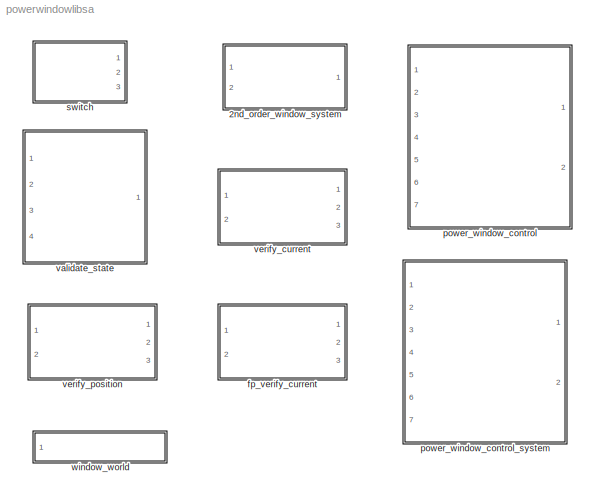
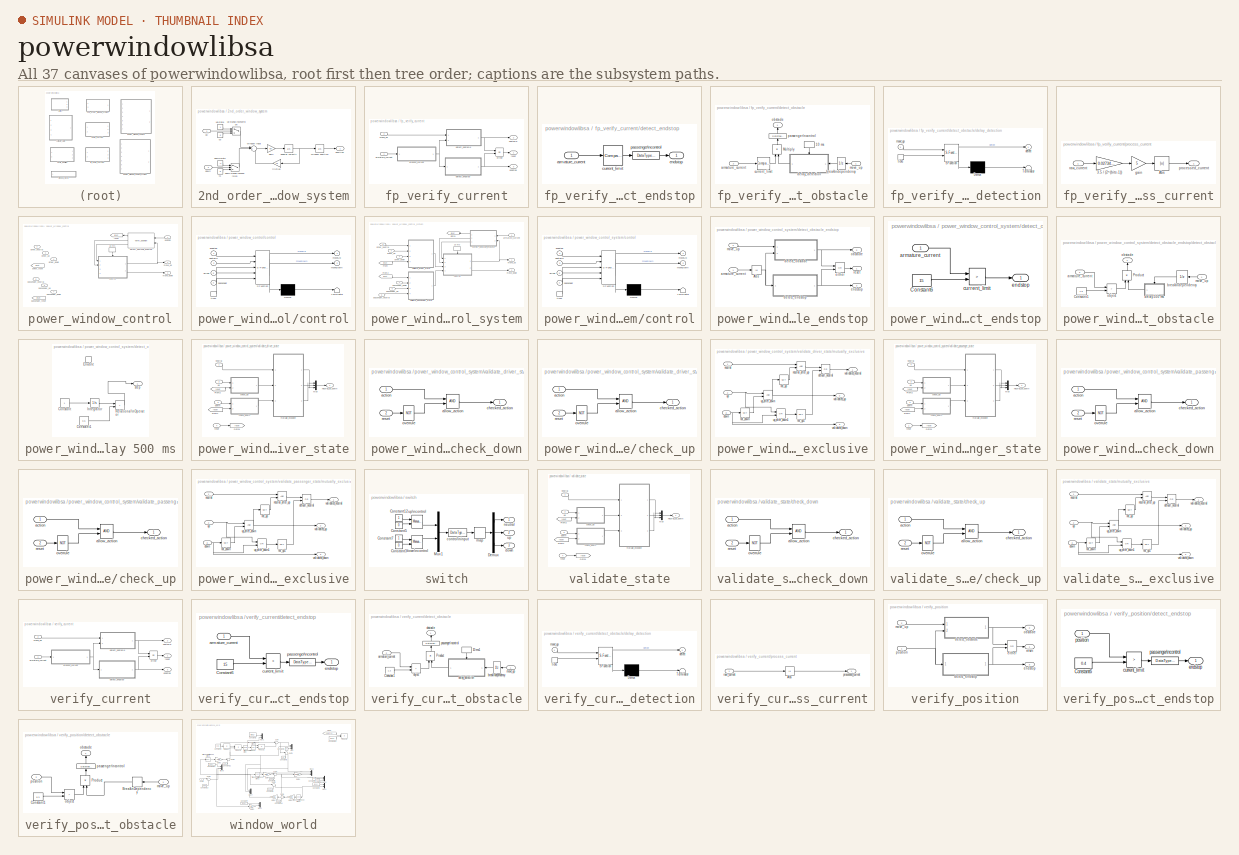
[diagram: thumbnail index - all 37 canvases of the model, root first then tree order]
MODEL powerwindowlibsa
KIND library
CONFIG InitFcn = powericon('psbinitsys',bdroot);
BLOCK [SubSystem] 2nd_order_window_system
  MinAlgLoopOccurrences = off
  Ports = [2, 1]
  PropExecContextAcrossSSBoundary = on
  RTWSystemCode = Auto
  TreatAsAtomicUnit = off
BLOCK [Integrator] 2nd_order_window_system/angular velocity
  Ports = [1, 1]
BLOCK [Constant] 2nd_order_window_system/c0
  Value = 0
BLOCK [Constant] 2nd_order_window_system/c1
  Value = 0
BLOCK [Inport] 2nd_order_window_system/down
  IconDisplay = Port number
  LatchInput = off
  Port = 2
BLOCK [Switch] 2nd_order_window_system/down signal\nconversion
  Threshold = 0.5
BLOCK [Constant] 2nd_order_window_system/down\nrate
  Value = -1
BLOCK [Gain] 2nd_order_window_system/friction
  Gain = 10
BLOCK [Gain] 2nd_order_window_system/gain
  Gain = 50
BLOCK [Outport] 2nd_order_window_system/position
  IconDisplay = Port number
BLOCK [Inport] 2nd_order_window_system/up
  IconDisplay = Port number
  LatchInput = off
  Port = 1
BLOCK [Switch] 2nd_order_window_system/up signal\nconversion
  Threshold = 0.5
BLOCK [Constant] 2nd_order_window_system/up\nrate
BLOCK [Sum] 2nd_order_window_system/window input
  IconShape = round
  Inputs = |++-
  Ports = [3, 1]
BLOCK [Integrator] 2nd_order_window_system/window position
  Ports = [1, 1]
BLOCK [SubSystem] fp_verify_current
  AncestorBlock = powerwindowlibsa/verify_current
  MinAlgLoopOccurrences = off
  Ports = [2, 3]
  PropExecContextAcrossSSBoundary = on
  RTWSystemCode = Auto
  TreatAsAtomicUnit = off
BLOCK [Inport] fp_verify_current/armature_current
  IconDisplay = Port number
  LatchInput = off
  Port = 1
BLOCK [SubSystem] fp_verify_current/detect_endstop
  MinAlgLoopOccurrences = off
  Ports = [1, 1]
  PropExecContextAcrossSSBoundary = on
  RTWSystemCode = Auto
  TreatAsAtomicUnit = off
BLOCK [Inport] fp_verify_current/detect_endstop/armature_current
  IconDisplay = Port number
  LatchInput = off
  Port = 1
BLOCK [Reference] fp_verify_current/detect_endstop/current_limit  REF=fixpt_lib_4/Logic & Comparison/Compare\nTo Constant  (lib defined in mdl_ef9dacb0d1df)
  Ports = [1, 1]
  SourceBlock = fixpt_lib_4/Logic & Comparison/Compare\nTo Constant
  SourceType = Fixed-Point Compare To Constant
  const = 15
  relop = >
BLOCK [Outport] fp_verify_current/detect_endstop/endstop
  IconDisplay = Port number
BLOCK [DataTypeConversion] fp_verify_current/detect_endstop/passenger\ncontrol
  OutDataTypeMode = boolean
BLOCK [SubSystem] fp_verify_current/detect_obstacle
  MinAlgLoopOccurrences = off
  Ports = [2, 1]
  PropExecContextAcrossSSBoundary = on
  RTWSystemCode = Auto
  TreatAsAtomicUnit = off
BLOCK [DiscretePulseGenerator] fp_verify_current/detect_obstacle/10 ms
  Ports = [0, 1]
  SampleTime = 10e-3
BLOCK [Product] fp_verify_current/detect_obstacle/Multiply
  InputSameDT = off
  Inputs = **
  OutDataType = sfix(8)
  OutDataTypeMode = Inherit via internal rule
  OutScaling = 2^-5
  Ports = [2, 1]
  RndMeth = Floor
  SaturateOnIntegerOverflow = off
BLOCK [Inport] fp_verify_current/detect_obstacle/armature_current
  IconDisplay = Port number
  LatchInput = off
  Port = 2
BLOCK [UnitDelay] fp_verify_current/detect_obstacle/break\ndependency
  SampleTime = 0.01
BLOCK [Reference] fp_verify_current/detect_obstacle/current_limit  REF=fixpt_lib_4/Logic & Comparison/Compare\nTo Constant  (lib defined in mdl_ef9dacb0d1df)
  Ports = [1, 1]
  SourceBlock = fixpt_lib_4/Logic & Comparison/Compare\nTo Constant
  SourceType = Fixed-Point Compare To Constant
  const = 1.1
  relop = >
BLOCK [SubSystem] fp_verify_current/detect_obstacle/delay_detection
  MaskDescription = Stateflow diagram
  MaskDisplay = plot(sf('Private','sfblk','xIcon'),sf('Private','sfblk','yIcon'));text(0.5,0,sf('Private', 'sfblk', 'tIcon'),'HorizontalAl','Center','VerticalAl','Bottom');
  MaskIconFrame = off
  MaskIconOpaque = off
  MaskIconRotate = none
  MaskIconUnits = autoscale
  MaskSelfModifiable = on
  MaskType = Stateflow
  MinAlgLoopOccurrences = off
  Ports = [1, 1, 0, 1]
  PropExecContextAcrossSSBoundary = on
  RTWSystemCode = Auto
  TreatAsAtomicUnit = on
BLOCK [Demux] fp_verify_current/detect_obstacle/delay_detection/ Demux 
  Outputs = 1
  Ports = [1, 1]
BLOCK [S-Function] fp_verify_current/detect_obstacle/delay_detection/ SFunction 
  FunctionName = sf_sfun
  PortCounts = [2 2]
  Ports = [2, 2]
  Tag = Stateflow S-Function powerwindowlibsa 4
BLOCK [Terminator] fp_verify_current/detect_obstacle/delay_detection/ Terminator 
BLOCK [Outport] fp_verify_current/detect_obstacle/delay_detection/detect
  IconDisplay = Port number
BLOCK [Inport] fp_verify_current/detect_obstacle/delay_detection/move_up
  IconDisplay = Port number
  LatchInput = off
  Port = 1
BLOCK [TriggerPort] fp_verify_current/detect_obstacle/delay_detection/ticks
  Ports = [0, 1]
  ShowOutputPort = on
  TriggerType = either
BLOCK [Inport] fp_verify_current/detect_obstacle/move_up
  IconDisplay = Port number
  LatchInput = off
  Port = 1
BLOCK [Outport] fp_verify_current/detect_obstacle/obstacle
  IconDisplay = Port number
BLOCK [DataTypeConversion] fp_verify_current/detect_obstacle/passenger\ncontrol
  OutDataTypeMode = boolean
BLOCK [Logic] fp_verify_current/either
  Operator = OR
  Ports = [2, 1]
BLOCK [Outport] fp_verify_current/endstop
  IconDisplay = Port number
  Port = 3
BLOCK [Inport] fp_verify_current/move_up
  IconDisplay = Port number
  LatchInput = off
  Port = 2
BLOCK [Outport] fp_verify_current/obstacle
  IconDisplay = Port number
  Port = 2
BLOCK [SubSystem] fp_verify_current/process_current
  MinAlgLoopOccurrences = off
  Ports = [1, 1]
  PropExecContextAcrossSSBoundary = on
  RTWSystemCode = Auto
  TreatAsAtomicUnit = off
BLOCK [Gain] fp_verify_current/process_current/3.5 // (2^(bits-1))
  Gain = 0.02734375
  OutDataTypeMode = Specify via dialog
  OutScaling = 2^-6
  ParameterDataType = sfix( 8 )
  ParameterDataTypeMode = Inherit via internal rule
  ParameterScaling = 2^-12
  SaturateOnIntegerOverflow = off
BLOCK [Abs] fp_verify_current/process_current/Abs
  SaturateOnIntegerOverflow = off
BLOCK [Gain] fp_verify_current/process_current/gain
  Gain = 5
  OutDataTypeMode = Specify via dialog
  OutScaling = 2^-5
  ParameterDataType = sfix( 8 )
  ParameterDataTypeMode = Inherit via internal rule
  ParameterScaling = 2^-4
  SaturateOnIntegerOverflow = off
BLOCK [Outport] fp_verify_current/process_current/processed_current
  IconDisplay = Port number
BLOCK [Inport] fp_verify_current/process_current/raw_current
  IconDisplay = Port number
  LatchInput = off
  Port = 1
BLOCK [Outport] fp_verify_current/reset
  IconDisplay = Port number
BLOCK [SubSystem] power_window_control
  MinAlgLoopOccurrences = off
  Ports = [7, 2]
  PropExecContextAcrossSSBoundary = on
  RTWSystemCode = Auto
  TreatAsAtomicUnit = off
BLOCK [DiscretePulseGenerator] power_window_control/10 ms
  Ports = [0, 1]
  SampleTime = 10e-3
BLOCK [SubSystem] power_window_control/control
  MaskDescription = Stateflow diagram
  MaskDisplay = plot(sf('Private','sfblk','xIcon'),sf('Private','sfblk','yIcon'));text(0.5,0,sf('Private', 'sfblk', 'tIcon'),'HorizontalAl','Center','VerticalAl','Bottom');
  MaskIconFrame = off
  MaskIconOpaque = off
  MaskIconRotate = none
  MaskIconUnits = autoscale
  MaskSelfModifiable = on
  MaskType = Stateflow
  MinAlgLoopOccurrences = off
  Ports = [4, 2, 0, 1]
  PropExecContextAcrossSSBoundary = on
  RTWSystemCode = Auto
  TreatAsAtomicUnit = on
BLOCK [Demux] power_window_control/control/ Demux 
  Outputs = 1
  Ports = [1, 1]
BLOCK [S-Function] power_window_control/control/ SFunction 
  FunctionName = sf_sfun
  PortCounts = [5 3]
  Ports = [5, 3]
  Tag = Stateflow S-Function powerwindowlibsa 2
BLOCK [Terminator] power_window_control/control/ Terminator 
BLOCK [Inport] power_window_control/control/driver
  IconDisplay = Port number
  LatchInput = off
  Port = 3
BLOCK [Inport] power_window_control/control/endstop
  IconDisplay = Port number
  LatchInput = off
  Port = 1
BLOCK [Outport] power_window_control/control/moveDown
  IconDisplay = Port number
  Port = 2
BLOCK [Outport] power_window_control/control/moveUp
  IconDisplay = Port number
BLOCK [Inport] power_window_control/control/obstacle
  IconDisplay = Port number
  LatchInput = off
  Port = 2
BLOCK [Inport] power_window_control/control/passenger
  IconDisplay = Port number
  LatchInput = off
  Port = 4
BLOCK [TriggerPort] power_window_control/control/ticks
  Ports = [0, 1]
  ShowOutputPort = on
  TriggerType = either
BLOCK [Reference] power_window_control/detect_obstacle_endstop  REF=powerwindowlibsa/verify_position  (lib defined in mdl_0e1f81347832)
  AncestorBlock = powerwindowlibsa/detect_obstacle_endstop
  DataTypeOverride = UseLocalSettings
  MinMaxOverflowLogging = UseLocalSettings
  Permissions = ReadWrite
  Ports = [2, 3]
  RTWFcnNameOpts = Auto
  RTWFileNameOpts = Auto
  RTWSystemCode = Auto
  ShowPortLabels = on
  SimViewingDevice = off
  SourceBlock = powerwindowlibsa/verify_position
  SourceType = SubSystem
  TreatAsAtomicUnit = off
BLOCK [Inport] power_window_control/driver_down
  IconDisplay = Port number
  LatchInput = off
  Port = 4
BLOCK [Inport] power_window_control/driver_neutral
  IconDisplay = Port number
  LatchInput = off
  Port = 2
BLOCK [From] power_window_control/driver_reset
  CloseFcn = tagdialog Close
  DialogController = Simulink.DDGSource
  GotoTag = reset
BLOCK [Inport] power_window_control/driver_up
  IconDisplay = Port number
  LatchInput = off
  Port = 3
BLOCK [Outport] power_window_control/move_down
  IconDisplay = Port number
  Port = 2
BLOCK [Outport] power_window_control/move_up
  IconDisplay = Port number
BLOCK [Inport] power_window_control/passenger_down
  IconDisplay = Port number
  LatchInput = off
  Port = 7
BLOCK [Inport] power_window_control/passenger_neutral
  IconDisplay = Port number
  LatchInput = off
  Port = 5
BLOCK [From] power_window_control/passenger_reset
  CloseFcn = tagdialog Close
  DialogController = Simulink.DDGSource
  GotoTag = reset
BLOCK [Inport] power_window_control/passenger_up
  IconDisplay = Port number
  LatchInput = off
  Port = 6
BLOCK [Inport] power_window_control/position
  IconDisplay = Port number
  LatchInput = off
  Port = 1
BLOCK [Goto] power_window_control/reset
  DialogController = Simulink.DDGSource
  GotoTag = reset
  TagVisibility = local
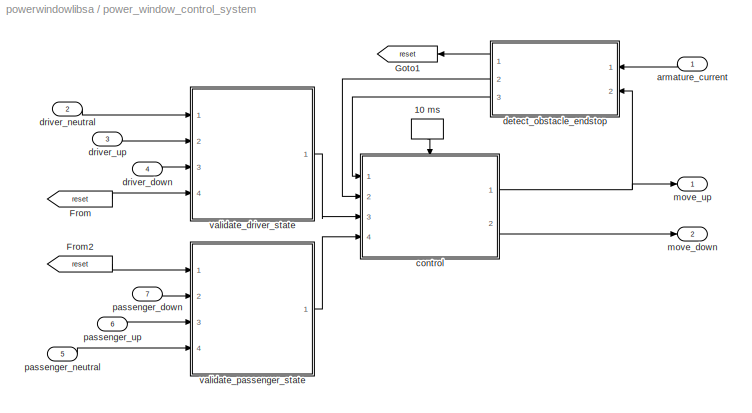
BLOCK [SubSystem] power_window_control_system
  MinAlgLoopOccurrences = off
  Ports = [7, 2]
  PropExecContextAcrossSSBoundary = on
  RTWSystemCode = Auto
  TreatAsAtomicUnit = off
BLOCK [DiscretePulseGenerator] power_window_control_system/10 ms
  Period = 1e-2
  Ports = [0, 1]
  PulseType = Time based
  SampleTime = 1e-3
BLOCK [From] power_window_control_system/From
  CloseFcn = tagdialog Close
  DialogController = Simulink.DDGSource
  GotoTag = reset
BLOCK [From] power_window_control_system/From2
  CloseFcn = tagdialog Close
  DialogController = Simulink.DDGSource
  GotoTag = reset
BLOCK [Goto] power_window_control_system/Goto1
  DialogController = Simulink.DDGSource
  GotoTag = reset
  TagVisibility = local
BLOCK [Inport] power_window_control_system/armature_current
  IconDisplay = Port number
  LatchInput = off
  Port = 1
BLOCK [SubSystem] power_window_control_system/control
  MaskDescription = Stateflow diagram
  MaskDisplay = plot(sf('Private','sfblk','xIcon'),sf('Private','sfblk','yIcon'));text(0.5,0,sf('Private', 'sfblk', 'tIcon'),'HorizontalAl','Center','VerticalAl','Bottom');
  MaskIconFrame = off
  MaskIconOpaque = off
  MaskIconRotate = none
  MaskIconUnits = autoscale
  MaskSelfModifiable = on
  MaskType = Stateflow
  MinAlgLoopOccurrences = off
  Ports = [4, 2, 0, 1]
  PropExecContextAcrossSSBoundary = on
  RTWSystemCode = Auto
  TreatAsAtomicUnit = on
BLOCK [Demux] power_window_control_system/control/ Demux 
  Outputs = 1
  Ports = [1, 1]
BLOCK [S-Function] power_window_control_system/control/ SFunction 
  FunctionName = sf_sfun
  PortCounts = [5 3]
  Ports = [5, 3]
  Tag = Stateflow S-Function powerwindowlibsa 1
BLOCK [Terminator] power_window_control_system/control/ Terminator 
BLOCK [Inport] power_window_control_system/control/driver
  IconDisplay = Port number
  LatchInput = off
  Port = 3
BLOCK [Inport] power_window_control_system/control/endstop
  IconDisplay = Port number
  LatchInput = off
  Port = 1
BLOCK [Outport] power_window_control_system/control/moveDown
  IconDisplay = Port number
  Port = 2
BLOCK [Outport] power_window_control_system/control/moveUp
  IconDisplay = Port number
BLOCK [Inport] power_window_control_system/control/obstacle
  IconDisplay = Port number
  LatchInput = off
  Port = 2
BLOCK [Inport] power_window_control_system/control/passenger
  IconDisplay = Port number
  LatchInput = off
  Port = 4
BLOCK [TriggerPort] power_window_control_system/control/ticks
  Ports = [0, 1]
  ShowOutputPort = on
BLOCK [SubSystem] power_window_control_system/detect_obstacle_endstop
  MinAlgLoopOccurrences = off
  Ports = [2, 3]
  PropExecContextAcrossSSBoundary = on
  RTWSystemCode = Auto
  TreatAsAtomicUnit = off
BLOCK [Abs] power_window_control_system/detect_obstacle_endstop/Abs
BLOCK [Inport] power_window_control_system/detect_obstacle_endstop/armature_current
  IconDisplay = Port number
  LatchInput = off
  Port = 1
BLOCK [SubSystem] power_window_control_system/detect_obstacle_endstop/detect_endstop
  MinAlgLoopOccurrences = off
  Ports = [1, 1]
  PropExecContextAcrossSSBoundary = on
  RTWSystemCode = Auto
  TreatAsAtomicUnit = off
BLOCK [Constant] power_window_control_system/detect_obstacle_endstop/detect_endstop/Constant6
  Value = 15
BLOCK [Inport] power_window_control_system/detect_obstacle_endstop/detect_endstop/armature_current
  IconDisplay = Port number
  LatchInput = off
  Port = 1
BLOCK [RelationalOperator] power_window_control_system/detect_obstacle_endstop/detect_endstop/current_limit
  Operator = >
BLOCK [Outport] power_window_control_system/detect_obstacle_endstop/detect_endstop/endstop
  IconDisplay = Port number
BLOCK [SubSystem] power_window_control_system/detect_obstacle_endstop/detect_obstacle
  MinAlgLoopOccurrences = off
  Ports = [2, 1]
  PropExecContextAcrossSSBoundary = on
  RTWSystemCode = Auto
  TreatAsAtomicUnit = off
BLOCK [Constant] power_window_control_system/detect_obstacle_endstop/detect_obstacle/Constant1
  Value = 1.6
BLOCK [Product] power_window_control_system/detect_obstacle_endstop/detect_obstacle/Product
  Ports = [2, 1]
  RndMeth = Floor
BLOCK [Inport] power_window_control_system/detect_obstacle_endstop/detect_obstacle/armature_current
  IconDisplay = Port number
  LatchInput = off
  Port = 2
BLOCK [UnitDelay] power_window_control_system/detect_obstacle_endstop/detect_obstacle/break\ndependency
  SampleTime = 0.01
BLOCK [SubSystem] power_window_control_system/detect_obstacle_endstop/detect_obstacle/delay 500 ms
  MinAlgLoopOccurrences = off
  Ports = [0, 1, 1]
  PropExecContextAcrossSSBoundary = on
  RTWSystemCode = Auto
  TreatAsAtomicUnit = on
BLOCK [Constant] power_window_control_system/detect_obstacle_endstop/detect_obstacle/delay 500 ms/Constant
BLOCK [Constant] power_window_control_system/detect_obstacle_endstop/detect_obstacle/delay 500 ms/Constant1
  Value = 0.5
BLOCK [EnablePort] power_window_control_system/detect_obstacle_endstop/detect_obstacle/delay 500 ms/Enable
  Ports = []
  StatesWhenEnabling = reset
BLOCK [Integrator] power_window_control_system/detect_obstacle_endstop/detect_obstacle/delay 500 ms/Integrator
  Ports = [1, 1]
BLOCK [RelationalOperator] power_window_control_system/detect_obstacle_endstop/detect_obstacle/delay 500 ms/Relational\nOperator
  Operator = >
BLOCK [Outport] power_window_control_system/detect_obstacle_endstop/detect_obstacle/delay 500 ms/step
  IconDisplay = Port number
  InitialOutput = 0
  OutputWhenDisabled = reset
BLOCK [Inport] power_window_control_system/detect_obstacle_endstop/detect_obstacle/move_up
  IconDisplay = Port number
  LatchInput = off
  Port = 1
BLOCK [RelationalOperator] power_window_control_system/detect_obstacle_endstop/detect_obstacle/object
  Operator = >
BLOCK [Outport] power_window_control_system/detect_obstacle_endstop/detect_obstacle/obstacle
  IconDisplay = Port number
BLOCK [Logic] power_window_control_system/detect_obstacle_endstop/either
  Operator = OR
  Ports = [2, 1]
BLOCK [Outport] power_window_control_system/detect_obstacle_endstop/endstop
  IconDisplay = Port number
  Port = 3
BLOCK [Inport] power_window_control_system/detect_obstacle_endstop/move_up
  IconDisplay = Port number
  LatchInput = off
  Port = 2
BLOCK [Outport] power_window_control_system/detect_obstacle_endstop/obstacle
  IconDisplay = Port number
  Port = 2
BLOCK [Outport] power_window_control_system/detect_obstacle_endstop/reset
  IconDisplay = Port number
BLOCK [Inport] power_window_control_system/driver_down
  IconDisplay = Port number
  LatchInput = off
  Port = 4
BLOCK [Inport] power_window_control_system/driver_neutral
  IconDisplay = Port number
  LatchInput = off
  Port = 2
BLOCK [Inport] power_window_control_system/driver_up
  IconDisplay = Port number
  LatchInput = off
  Port = 3
BLOCK [Outport] power_window_control_system/move_down
  IconDisplay = Port number
  Port = 2
BLOCK [Outport] power_window_control_system/move_up
  IconDisplay = Port number
BLOCK [Inport] power_window_control_system/passenger_down
  IconDisplay = Port number
  LatchInput = off
  Port = 7
BLOCK [Inport] power_window_control_system/passenger_neutral
  IconDisplay = Port number
  LatchInput = off
  Port = 5
BLOCK [Inport] power_window_control_system/passenger_up
  IconDisplay = Port number
  LatchInput = off
  Port = 6
BLOCK [SubSystem] power_window_control_system/validate_driver_state
  MinAlgLoopOccurrences = off
  Ports = [4, 1]
  PropExecContextAcrossSSBoundary = on
  RTWSystemCode = Auto
  TreatAsAtomicUnit = off
BLOCK [From] power_window_control_system/validate_driver_state/From1
  CloseFcn = tagdialog Close
  DialogController = Simulink.DDGSource
  GotoTag = reset
BLOCK [From] power_window_control_system/validate_driver_state/From2
  CloseFcn = tagdialog Close
  DialogController = Simulink.DDGSource
  GotoTag = reset
BLOCK [Goto] power_window_control_system/validate_driver_state/Goto1
  DialogController = Simulink.DDGSource
  GotoTag = reset
  TagVisibility = local
BLOCK [Mux] power_window_control_system/validate_driver_state/Mux
  DisplayOption = bar
  Inputs = 3
  Ports = [3, 1]
BLOCK [SubSystem] power_window_control_system/validate_driver_state/check_down
  MinAlgLoopOccurrences = off
  Ports = [2, 1]
  PropExecContextAcrossSSBoundary = on
  RTWSystemCode = Auto
  TreatAsAtomicUnit = off
BLOCK [Inport] power_window_control_system/validate_driver_state/check_down/action
  IconDisplay = Port number
  LatchInput = off
  Port = 1
BLOCK [Logic] power_window_control_system/validate_driver_state/check_down/allow_action
  Ports = [2, 1]
BLOCK [Outport] power_window_control_system/validate_driver_state/check_down/checked_action
  IconDisplay = Port number
BLOCK [Logic] power_window_control_system/validate_driver_state/check_down/overrule
  Operator = NOT
  Ports = [1, 1]
BLOCK [Inport] power_window_control_system/validate_driver_state/check_down/reset
  IconDisplay = Port number
  LatchInput = off
  Port = 2
BLOCK [SubSystem] power_window_control_system/validate_driver_state/check_up
  MinAlgLoopOccurrences = off
  Ports = [2, 1]
  PropExecContextAcrossSSBoundary = on
  RTWSystemCode = Auto
  TreatAsAtomicUnit = off
BLOCK [Inport] power_window_control_system/validate_driver_state/check_up/action
  IconDisplay = Port number
  LatchInput = off
  Port = 1
BLOCK [Logic] power_window_control_system/validate_driver_state/check_up/allow_action
  Ports = [2, 1]
BLOCK [Outport] power_window_control_system/validate_driver_state/check_up/checked_action
  IconDisplay = Port number
BLOCK [Logic] power_window_control_system/validate_driver_state/check_up/overrule
  Operator = NOT
  Ports = [1, 1]
BLOCK [Inport] power_window_control_system/validate_driver_state/check_up/reset
  IconDisplay = Port number
  LatchInput = off
  Port = 2
BLOCK [Inport] power_window_control_system/validate_driver_state/down
  IconDisplay = Port number
  LatchInput = off
  Port = 3
BLOCK [SubSystem] power_window_control_system/validate_driver_state/mutually_exclusive
  MinAlgLoopOccurrences = off
  Ports = [3, 3]
  PropExecContextAcrossSSBoundary = on
  RTWSystemCode = Auto
  TreatAsAtomicUnit = off
BLOCK [Logic] power_window_control_system/validate_driver_state/mutually_exclusive/default_neutral
  Operator = OR
  Ports = [2, 1]
BLOCK [Inport] power_window_control_system/validate_driver_state/mutually_exclusive/down
  IconDisplay = Port number
  LatchInput = off
  Port = 3
BLOCK [Inport] power_window_control_system/validate_driver_state/mutually_exclusive/neutral
  IconDisplay = Port number
  LatchInput = off
  Port = 1
BLOCK [Logic] power_window_control_system/validate_driver_state/mutually_exclusive/neutral_after_up
  Ports = [2, 1]
BLOCK [Logic] power_window_control_system/validate_driver_state/mutually_exclusive/not_down
  Operator = NOT
  Ports = [1, 1]
BLOCK [Logic] power_window_control_system/validate_driver_state/mutually_exclusive/not_up
  Operator = NOT
  Ports = [1, 1]
BLOCK [Logic] power_window_control_system/validate_driver_state/mutually_exclusive/not_up1
  Operator = NOT
  Ports = [1, 1]
BLOCK [Inport] power_window_control_system/validate_driver_state/mutually_exclusive/up
  IconDisplay = Port number
  LatchInput = off
  Port = 2
BLOCK [Logic] power_window_control_system/validate_driver_state/mutually_exclusive/up_after_down
  Ports = [2, 1]
BLOCK [Logic] power_window_control_system/validate_driver_state/mutually_exclusive/up_after_down1
  Operator = OR
  Ports = [2, 1]
BLOCK [Outport] power_window_control_system/validate_driver_state/mutually_exclusive/validated_down
  IconDisplay = Port number
  Port = 3
BLOCK [Outport] power_window_control_system/validate_driver_state/mutually_exclusive/validated_neutral
  IconDisplay = Port number
BLOCK [Outport] power_window_control_system/validate_driver_state/mutually_exclusive/validated_up
  IconDisplay = Port number
  Port = 2
BLOCK [Inport] power_window_control_system/validate_driver_state/neutral
  IconDisplay = Port number
  LatchInput = off
  Port = 1
BLOCK [Outport] power_window_control_system/validate_driver_state/neutral_up_down
  IconDisplay = Port number
BLOCK [Inport] power_window_control_system/validate_driver_state/reset
  IconDisplay = Port number
  LatchInput = off
  Port = 4
BLOCK [Inport] power_window_control_system/validate_driver_state/up
  IconDisplay = Port number
  LatchInput = off
  Port = 2
BLOCK [SubSystem] power_window_control_system/validate_passenger_state
  MinAlgLoopOccurrences = off
  Ports = [4, 1]
  PropExecContextAcrossSSBoundary = on
  RTWSystemCode = Auto
  TreatAsAtomicUnit = off
BLOCK [From] power_window_control_system/validate_passenger_state/From1
  CloseFcn = tagdialog Close
  DialogController = Simulink.DDGSource
  GotoTag = reset
BLOCK [From] power_window_control_system/validate_passenger_state/From2
  CloseFcn = tagdialog Close
  DialogController = Simulink.DDGSource
  GotoTag = reset
BLOCK [Goto] power_window_control_system/validate_passenger_state/Goto1
  DialogController = Simulink.DDGSource
  GotoTag = reset
  TagVisibility = local
BLOCK [Mux] power_window_control_system/validate_passenger_state/Mux
  DisplayOption = bar
  Inputs = 3
  Ports = [3, 1]
BLOCK [SubSystem] power_window_control_system/validate_passenger_state/check_down
  MinAlgLoopOccurrences = off
  Ports = [2, 1]
  PropExecContextAcrossSSBoundary = on
  RTWSystemCode = Auto
  TreatAsAtomicUnit = off
BLOCK [Inport] power_window_control_system/validate_passenger_state/check_down/action
  IconDisplay = Port number
  LatchInput = off
  Port = 1
BLOCK [Logic] power_window_control_system/validate_passenger_state/check_down/allow_action
  Ports = [2, 1]
BLOCK [Outport] power_window_control_system/validate_passenger_state/check_down/checked_action
  IconDisplay = Port number
BLOCK [Logic] power_window_control_system/validate_passenger_state/check_down/overrule
  Operator = NOT
  Ports = [1, 1]
BLOCK [Inport] power_window_control_system/validate_passenger_state/check_down/reset
  IconDisplay = Port number
  LatchInput = off
  Port = 2
BLOCK [SubSystem] power_window_control_system/validate_passenger_state/check_up
  MinAlgLoopOccurrences = off
  Ports = [2, 1]
  PropExecContextAcrossSSBoundary = on
  RTWSystemCode = Auto
  TreatAsAtomicUnit = off
BLOCK [Inport] power_window_control_system/validate_passenger_state/check_up/action
  IconDisplay = Port number
  LatchInput = off
  Port = 1
BLOCK [Logic] power_window_control_system/validate_passenger_state/check_up/allow_action
  Ports = [2, 1]
BLOCK [Outport] power_window_control_system/validate_passenger_state/check_up/checked_action
  IconDisplay = Port number
BLOCK [Logic] power_window_control_system/validate_passenger_state/check_up/overrule
  Operator = NOT
  Ports = [1, 1]
BLOCK [Inport] power_window_control_system/validate_passenger_state/check_up/reset
  IconDisplay = Port number
  LatchInput = off
  Port = 2
BLOCK [Inport] power_window_control_system/validate_passenger_state/down
  IconDisplay = Port number
  LatchInput = off
  Port = 2
BLOCK [SubSystem] power_window_control_system/validate_passenger_state/mutually_exclusive
  MinAlgLoopOccurrences = off
  Ports = [3, 3]
  PropExecContextAcrossSSBoundary = on
  RTWSystemCode = Auto
  TreatAsAtomicUnit = off
BLOCK [Logic] power_window_control_system/validate_passenger_state/mutually_exclusive/default_neutral
  Operator = OR
  Ports = [2, 1]
BLOCK [Inport] power_window_control_system/validate_passenger_state/mutually_exclusive/down
  IconDisplay = Port number
  LatchInput = off
  Port = 3
BLOCK [Inport] power_window_control_system/validate_passenger_state/mutually_exclusive/neutral
  IconDisplay = Port number
  LatchInput = off
  Port = 1
BLOCK [Logic] power_window_control_system/validate_passenger_state/mutually_exclusive/neutral_after_up
  Ports = [2, 1]
BLOCK [Logic] power_window_control_system/validate_passenger_state/mutually_exclusive/not_down
  Operator = NOT
  Ports = [1, 1]
BLOCK [Logic] power_window_control_system/validate_passenger_state/mutually_exclusive/not_up
  Operator = NOT
  Ports = [1, 1]
BLOCK [Logic] power_window_control_system/validate_passenger_state/mutually_exclusive/not_up1
  Operator = NOT
  Ports = [1, 1]
BLOCK [Inport] power_window_control_system/validate_passenger_state/mutually_exclusive/up
  IconDisplay = Port number
  LatchInput = off
  Port = 2
BLOCK [Logic] power_window_control_system/validate_passenger_state/mutually_exclusive/up_after_down
  Ports = [2, 1]
BLOCK [Logic] power_window_control_system/validate_passenger_state/mutually_exclusive/up_after_down1
  Operator = OR
  Ports = [2, 1]
BLOCK [Outport] power_window_control_system/validate_passenger_state/mutually_exclusive/validated_down
  IconDisplay = Port number
  Port = 3
BLOCK [Outport] power_window_control_system/validate_passenger_state/mutually_exclusive/validated_neutral
  IconDisplay = Port number
BLOCK [Outport] power_window_control_system/validate_passenger_state/mutually_exclusive/validated_up
  IconDisplay = Port number
  Port = 2
BLOCK [Inport] power_window_control_system/validate_passenger_state/neutral
  IconDisplay = Port number
  LatchInput = off
  Port = 4
BLOCK [Outport] power_window_control_system/validate_passenger_state/neutral_up_down
  IconDisplay = Port number
BLOCK [Inport] power_window_control_system/validate_passenger_state/reset
  IconDisplay = Port number
  LatchInput = off
  Port = 1
BLOCK [Inport] power_window_control_system/validate_passenger_state/up
  IconDisplay = Port number
  LatchInput = off
  Port = 3
BLOCK [SubSystem] switch
  MinAlgLoopOccurrences = off
  Ports = [0, 3]
  PropExecContextAcrossSSBoundary = on
  RTWSystemCode = Auto
  TreatAsAtomicUnit = off
BLOCK [Constant] switch/Constant12
BLOCK [Constant] switch/Constant3
  Value = 0
BLOCK [Constant] switch/Constant5
  Value = 0
BLOCK [Constant] switch/Constant7
BLOCK [Demux] switch/Demux
  Outputs = 3
  Ports = [1, 3]
BLOCK [Mux] switch/Mux1
  DisplayOption = bar
  Inputs = 2
  Ports = [2, 1]
BLOCK [DataTypeConversion] switch/control\ninput
  OutDataTypeMode = boolean
BLOCK [Outport] switch/down
  IconDisplay = Port number
  Port = 3
BLOCK [Reference] switch/down\ncontrol  REF=simulink/Signal\nRouting/Manual Switch
  Ports = [2, 1]
  SourceBlock = simulink/Signal\nRouting/Manual Switch
  SourceType = Manual Switch
  action = 0
  sw = 0
BLOCK [CombinatorialLogic] switch/map
  TruthTable = [1 0 0;0 0 1;0 1 0;1 0 0]
BLOCK [Outport] switch/neutral
  IconDisplay = Port number
BLOCK [Outport] switch/up
  IconDisplay = Port number
  Port = 2
BLOCK [Reference] switch/up\ncontrol  REF=simulink/Signal\nRouting/Manual Switch
  Ports = [2, 1]
  SourceBlock = simulink/Signal\nRouting/Manual Switch
  SourceType = Manual Switch
  action = 0
  sw = 0
BLOCK [SubSystem] validate_state
  MinAlgLoopOccurrences = off
  Ports = [4, 1]
  PropExecContextAcrossSSBoundary = on
  RTWSystemCode = Auto
  TreatAsAtomicUnit = off
BLOCK [From] validate_state/From1
  CloseFcn = tagdialog Close
  DialogController = Simulink.DDGSource
  GotoTag = reset
BLOCK [From] validate_state/From2
  CloseFcn = tagdialog Close
  DialogController = Simulink.DDGSource
  GotoTag = reset
BLOCK [Goto] validate_state/Goto1
  DialogController = Simulink.DDGSource
  GotoTag = reset
  TagVisibility = local
BLOCK [Mux] validate_state/Mux
  DisplayOption = bar
  Inputs = 3
  Ports = [3, 1]
BLOCK [SubSystem] validate_state/check_down
  MinAlgLoopOccurrences = off
  Ports = [2, 1]
  PropExecContextAcrossSSBoundary = on
  RTWSystemCode = Auto
  TreatAsAtomicUnit = off
BLOCK [Inport] validate_state/check_down/action
  IconDisplay = Port number
  LatchInput = off
  Port = 1
BLOCK [Logic] validate_state/check_down/allow_action
  Ports = [2, 1]
BLOCK [Outport] validate_state/check_down/checked_action
  IconDisplay = Port number
BLOCK [Logic] validate_state/check_down/overrule
  Operator = NOT
  Ports = [1, 1]
BLOCK [Inport] validate_state/check_down/reset
  IconDisplay = Port number
  LatchInput = off
  Port = 2
BLOCK [SubSystem] validate_state/check_up
  MinAlgLoopOccurrences = off
  Ports = [2, 1]
  PropExecContextAcrossSSBoundary = on
  RTWSystemCode = Auto
  TreatAsAtomicUnit = off
BLOCK [Inport] validate_state/check_up/action
  IconDisplay = Port number
  LatchInput = off
  Port = 1
BLOCK [Logic] validate_state/check_up/allow_action
  Ports = [2, 1]
BLOCK [Outport] validate_state/check_up/checked_action
  IconDisplay = Port number
BLOCK [Logic] validate_state/check_up/overrule
  Operator = NOT
  Ports = [1, 1]
BLOCK [Inport] validate_state/check_up/reset
  IconDisplay = Port number
  LatchInput = off
  Port = 2
BLOCK [Inport] validate_state/down
  IconDisplay = Port number
  LatchInput = off
  Port = 3
BLOCK [SubSystem] validate_state/mutually_exclusive
  MinAlgLoopOccurrences = off
  Ports = [3, 3]
  PropExecContextAcrossSSBoundary = on
  RTWSystemCode = Auto
  TreatAsAtomicUnit = off
BLOCK [Logic] validate_state/mutually_exclusive/default_neutral
  Operator = OR
  Ports = [2, 1]
BLOCK [Inport] validate_state/mutually_exclusive/down
  IconDisplay = Port number
  LatchInput = off
  Port = 3
BLOCK [Inport] validate_state/mutually_exclusive/neutral
  IconDisplay = Port number
  LatchInput = off
  Port = 1
BLOCK [Logic] validate_state/mutually_exclusive/neutral_after_up
  Ports = [2, 1]
BLOCK [Logic] validate_state/mutually_exclusive/not_down
  Operator = NOT
  Ports = [1, 1]
BLOCK [Logic] validate_state/mutually_exclusive/not_up
  Operator = NOT
  Ports = [1, 1]
BLOCK [Logic] validate_state/mutually_exclusive/not_up1
  Operator = NOT
  Ports = [1, 1]
BLOCK [Inport] validate_state/mutually_exclusive/up
  IconDisplay = Port number
  LatchInput = off
  Port = 2
BLOCK [Logic] validate_state/mutually_exclusive/up_after_down
  Ports = [2, 1]
BLOCK [Logic] validate_state/mutually_exclusive/up_after_down1
  Operator = OR
  Ports = [2, 1]
BLOCK [Outport] validate_state/mutually_exclusive/validated_down
  IconDisplay = Port number
  Port = 3
BLOCK [Outport] validate_state/mutually_exclusive/validated_neutral
  IconDisplay = Port number
BLOCK [Outport] validate_state/mutually_exclusive/validated_up
  IconDisplay = Port number
  Port = 2
BLOCK [Inport] validate_state/neutral
  IconDisplay = Port number
  LatchInput = off
  Port = 1
BLOCK [Outport] validate_state/neutral_up_down
  IconDisplay = Port number
BLOCK [Inport] validate_state/reset
  IconDisplay = Port number
  LatchInput = off
  Port = 4
BLOCK [Inport] validate_state/up
  IconDisplay = Port number
  LatchInput = off
  Port = 2
BLOCK [SubSystem] verify_current
  AncestorBlock = powerwindowlibsa/power_window_control_system/detect_obstacle_endstop
  MinAlgLoopOccurrences = off
  Ports = [2, 3]
  PropExecContextAcrossSSBoundary = on
  RTWSystemCode = Auto
  TreatAsAtomicUnit = off
BLOCK [Inport] verify_current/armature_current
  IconDisplay = Port number
  LatchInput = off
  Port = 1
BLOCK [SubSystem] verify_current/detect_endstop
  MinAlgLoopOccurrences = off
  Ports = [1, 1]
  PropExecContextAcrossSSBoundary = on
  RTWSystemCode = Auto
  TreatAsAtomicUnit = off
BLOCK [Constant] verify_current/detect_endstop/Constant6
  Value = 15
BLOCK [Inport] verify_current/detect_endstop/armature_current
  IconDisplay = Port number
  LatchInput = off
  Port = 1
BLOCK [RelationalOperator] verify_current/detect_endstop/current_limit
  Operator = >
BLOCK [Outport] verify_current/detect_endstop/endstop
  IconDisplay = Port number
BLOCK [DataTypeConversion] verify_current/detect_endstop/passenger\ncontrol
  OutDataTypeMode = boolean
BLOCK [SubSystem] verify_current/detect_obstacle
  MinAlgLoopOccurrences = off
  Ports = [2, 1]
  PropExecContextAcrossSSBoundary = on
  RTWSystemCode = Auto
  TreatAsAtomicUnit = off
BLOCK [DiscretePulseGenerator] verify_current/detect_obstacle/10 ms1
  Ports = [0, 1]
  SampleTime = 10e-3
BLOCK [Constant] verify_current/detect_obstacle/Constant1
  Value = 1.2
BLOCK [Product] verify_current/detect_obstacle/Product
  Ports = [2, 1]
  RndMeth = Floor
BLOCK [Inport] verify_current/detect_obstacle/armature_current
  IconDisplay = Port number
  LatchInput = off
  Port = 2
BLOCK [UnitDelay] verify_current/detect_obstacle/break\ndependency
  SampleTime = 0.01
BLOCK [SubSystem] verify_current/detect_obstacle/delay_detection
  MaskDescription = Stateflow diagram
  MaskDisplay = plot(sf('Private','sfblk','xIcon'),sf('Private','sfblk','yIcon'));text(0.5,0,sf('Private', 'sfblk', 'tIcon'),'HorizontalAl','Center','VerticalAl','Bottom');
  MaskIconFrame = off
  MaskIconOpaque = off
  MaskIconRotate = none
  MaskIconUnits = autoscale
  MaskSelfModifiable = on
  MaskType = Stateflow
  MinAlgLoopOccurrences = off
  Ports = [1, 1, 0, 1]
  PropExecContextAcrossSSBoundary = on
  RTWSystemCode = Auto
  TreatAsAtomicUnit = on
BLOCK [Demux] verify_current/detect_obstacle/delay_detection/ Demux 
  Outputs = 1
  Ports = [1, 1]
BLOCK [S-Function] verify_current/detect_obstacle/delay_detection/ SFunction 
  FunctionName = sf_sfun
  PortCounts = [2 2]
  Ports = [2, 2]
  Tag = Stateflow S-Function powerwindowlibsa 3
BLOCK [Terminator] verify_current/detect_obstacle/delay_detection/ Terminator 
BLOCK [Outport] verify_current/detect_obstacle/delay_detection/detect
  IconDisplay = Port number
BLOCK [Inport] verify_current/detect_obstacle/delay_detection/move_up
  IconDisplay = Port number
  LatchInput = off
  Port = 1
BLOCK [TriggerPort] verify_current/detect_obstacle/delay_detection/ticks
  Ports = [0, 1]
  ShowOutputPort = on
  TriggerType = either
BLOCK [Inport] verify_current/detect_obstacle/move_up
  IconDisplay = Port number
  LatchInput = off
  Port = 1
BLOCK [RelationalOperator] verify_current/detect_obstacle/object
  Operator = >
BLOCK [Outport] verify_current/detect_obstacle/obstacle
  IconDisplay = Port number
BLOCK [DataTypeConversion] verify_current/detect_obstacle/passenger\ncontrol
  OutDataTypeMode = boolean
BLOCK [Logic] verify_current/either
  Operator = OR
  Ports = [2, 1]
BLOCK [Outport] verify_current/endstop
  IconDisplay = Port number
  Port = 3
BLOCK [Inport] verify_current/move_up
  IconDisplay = Port number
  LatchInput = off
  Port = 2
BLOCK [Outport] verify_current/obstacle
  IconDisplay = Port number
  Port = 2
BLOCK [SubSystem] verify_current/process_current
  MinAlgLoopOccurrences = off
  Ports = [1, 1]
  PropExecContextAcrossSSBoundary = on
  RTWSystemCode = Auto
  TreatAsAtomicUnit = off
BLOCK [Abs] verify_current/process_current/Abs
BLOCK [Outport] verify_current/process_current/processed_current
  IconDisplay = Port number
BLOCK [Inport] verify_current/process_current/raw_current
  IconDisplay = Port number
  LatchInput = off
  Port = 1
BLOCK [Outport] verify_current/reset
  IconDisplay = Port number
BLOCK [SubSystem] verify_position
  AncestorBlock = powerwindowlibsa/detect_obstacle_endstop
  MinAlgLoopOccurrences = off
  Ports = [2, 3]
  PropExecContextAcrossSSBoundary = on
  RTWSystemCode = Auto
  TreatAsAtomicUnit = off
BLOCK [SubSystem] verify_position/detect_endstop
  MinAlgLoopOccurrences = off
  Ports = [1, 1]
  PropExecContextAcrossSSBoundary = on
  RTWSystemCode = Auto
  TreatAsAtomicUnit = off
BLOCK [Constant] verify_position/detect_endstop/Constant6
  Value = 0.4
BLOCK [RelationalOperator] verify_position/detect_endstop/current_limit
  Operator = >
BLOCK [Outport] verify_position/detect_endstop/endstop
  IconDisplay = Port number
BLOCK [DataTypeConversion] verify_position/detect_endstop/passenger\ncontrol
  OutDataTypeMode = boolean
BLOCK [Inport] verify_position/detect_endstop/position
  IconDisplay = Port number
  LatchInput = off
  Port = 1
BLOCK [SubSystem] verify_position/detect_obstacle
  MinAlgLoopOccurrences = off
  Ports = [2, 1]
  PropExecContextAcrossSSBoundary = on
  RTWSystemCode = Auto
  TreatAsAtomicUnit = off
BLOCK [Memory] verify_position/detect_obstacle/Break\nDependency
BLOCK [Constant] verify_position/detect_obstacle/Constant1
  Value = 0.3
BLOCK [Product] verify_position/detect_obstacle/Product
  Ports = [2, 1]
  RndMeth = Floor
BLOCK [Inport] verify_position/detect_obstacle/move_up
  IconDisplay = Port number
  LatchInput = off
  Port = 1
BLOCK [RelationalOperator] verify_position/detect_obstacle/object
  Operator = >
BLOCK [Outport] verify_position/detect_obstacle/obstacle
  IconDisplay = Port number
BLOCK [DataTypeConversion] verify_position/detect_obstacle/passenger\ncontrol
  OutDataTypeMode = boolean
BLOCK [Inport] verify_position/detect_obstacle/position
  IconDisplay = Port number
  LatchInput = off
  Port = 2
BLOCK [Logic] verify_position/either
  Operator = OR
  Ports = [2, 1]
BLOCK [Outport] verify_position/endstop
  IconDisplay = Port number
  Port = 3
BLOCK [Inport] verify_position/move_up
  IconDisplay = Port number
  LatchInput = off
  Port = 2
BLOCK [Outport] verify_position/obstacle
  IconDisplay = Port number
  Port = 2
BLOCK [Inport] verify_position/position
  IconDisplay = Port number
  LatchInput = off
  Port = 1
BLOCK [Outport] verify_position/reset
  IconDisplay = Port number
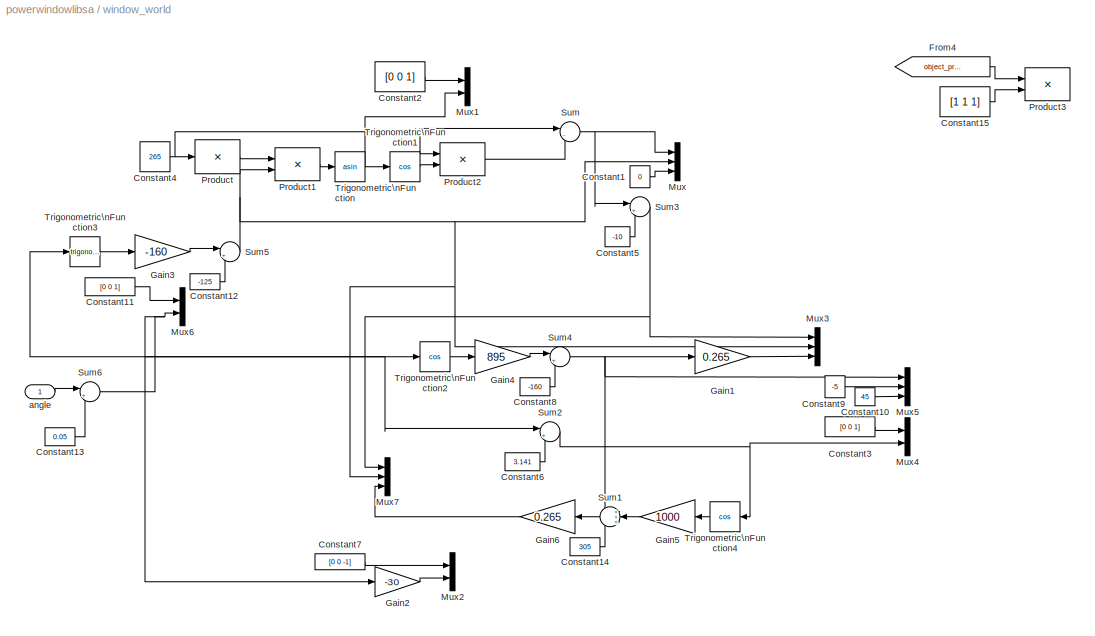
BLOCK [SubSystem] window_world
  AncestorBlock = powerwindowlibsa/window_world
  MaskDisplay = disp(sprintf('Double-click to view scene'))
  MaskIconFrame = on
  MaskIconOpaque = on
  MaskIconRotate = none
  MaskIconUnits = autoscale
  MinAlgLoopOccurrences = off
  OpenFcn = open_system([gcs '/window_world/VR Sink']);
  Ports = [1]
  PropExecContextAcrossSSBoundary = on
  RTWSystemCode = Auto
  TreatAsAtomicUnit = off
BLOCK [Constant] window_world/Constant1
  Value = 0
BLOCK [Constant] window_world/Constant10
  Value = 45
BLOCK [Constant] window_world/Constant11
  Value = [0 0 1]
BLOCK [Constant] window_world/Constant12
  Value = -125
BLOCK [Constant] window_world/Constant13
  Value = 0.05
BLOCK [Constant] window_world/Constant14
  Value = 305
BLOCK [Constant] window_world/Constant15
  Value = [1 1 1]
BLOCK [Constant] window_world/Constant2
  Value = [0 0 1]
BLOCK [Constant] window_world/Constant3
  Value = [0 0 1]
BLOCK [Constant] window_world/Constant4
  Value = 265
BLOCK [Constant] window_world/Constant5
  Value = -10
BLOCK [Constant] window_world/Constant6
  Value = 3.141
BLOCK [Constant] window_world/Constant7
  Value = [0 0 -1]
BLOCK [Constant] window_world/Constant8
  Value = -160
BLOCK [Constant] window_world/Constant9
  Value = -5
BLOCK [From] window_world/From4
  CloseFcn = tagdialog Close
  DialogController = Simulink.DDGSource
  GotoTag = object_present
BLOCK [Gain] window_world/Gain1
  Gain = 0.265
BLOCK [Gain] window_world/Gain2
  Gain = -30
BLOCK [Gain] window_world/Gain3
  Gain = -160
BLOCK [Gain] window_world/Gain4
  Gain = 895
BLOCK [Gain] window_world/Gain5
  Gain = 1000
BLOCK [Gain] window_world/Gain6
  Gain = 0.265
BLOCK [Mux] window_world/Mux
  DisplayOption = bar
  Inputs = 3
  Ports = [3, 1]
BLOCK [Mux] window_world/Mux1
  DisplayOption = bar
  Inputs = 2
  Ports = [2, 1]
BLOCK [Mux] window_world/Mux2
  DisplayOption = bar
  Inputs = 2
  Ports = [2, 1]
BLOCK [Mux] window_world/Mux3
  DisplayOption = bar
  Inputs = 3
  Ports = [3, 1]
BLOCK [Mux] window_world/Mux4
  DisplayOption = bar
  Inputs = 2
  Ports = [2, 1]
BLOCK [Mux] window_world/Mux5
  DisplayOption = bar
  Inputs = 3
  Ports = [3, 1]
BLOCK [Mux] window_world/Mux6
  DisplayOption = bar
  Inputs = 2
  Ports = [2, 1]
BLOCK [Mux] window_world/Mux7
  DisplayOption = bar
  Inputs = 3
  Ports = [3, 1]
BLOCK [Product] window_world/Product
  Inputs = /
  Ports = [1, 1]
  RndMeth = Floor
BLOCK [Product] window_world/Product1
  Ports = [2, 1]
  RndMeth = Floor
BLOCK [Product] window_world/Product2
  Ports = [2, 1]
  RndMeth = Floor
BLOCK [Product] window_world/Product3
  Ports = [2, 1]
  RndMeth = Floor
BLOCK [Sum] window_world/Sum
  IconShape = round
  Inputs = |-+
  Ports = [2, 1]
BLOCK [Sum] window_world/Sum1
  IconShape = round
  Inputs = +++
  Ports = [3, 1]
BLOCK [Sum] window_world/Sum2
  IconShape = round
  Inputs = |++
  Ports = [2, 1]
BLOCK [Sum] window_world/Sum3
  IconShape = round
  Inputs = |++
  Ports = [2, 1]
BLOCK [Sum] window_world/Sum4
  IconShape = round
  Inputs = |++
  Ports = [2, 1]
BLOCK [Sum] window_world/Sum5
  IconShape = round
  Inputs = |++
  Ports = [2, 1]
BLOCK [Sum] window_world/Sum6
  IconShape = round
  Inputs = |++
  Ports = [2, 1]
BLOCK [Trigonometry] window_world/Trigonometric\nFunction
  Operator = asin
  Ports = [1, 1]
BLOCK [Trigonometry] window_world/Trigonometric\nFunction1
  Operator = cos
  Ports = [1, 1]
BLOCK [Trigonometry] window_world/Trigonometric\nFunction2
  Operator = cos
  Ports = [1, 1]
BLOCK [Trigonometry] window_world/Trigonometric\nFunction3
  Ports = [1, 1]
BLOCK [Trigonometry] window_world/Trigonometric\nFunction4
  Operator = cos
  Ports = [1, 1]
BLOCK [Inport] window_world/angle
  IconDisplay = Port number
  LatchInput = off
  Port = 1
NET 2nd_order_window_system/angular velocity:1 -> 2nd_order_window_system/friction:1, 2nd_order_window_system/window position:1
LINE 2nd_order_window_system/c0:1 -> 2nd_order_window_system/up signal\nconversion:3
LINE 2nd_order_window_system/c1:1 -> 2nd_order_window_system/down signal\nconversion:3
LINE 2nd_order_window_system/down signal\nconversion:1 -> 2nd_order_window_system/window input:2
LINE 2nd_order_window_system/down:1 -> 2nd_order_window_system/down signal\nconversion:2
LINE 2nd_order_window_system/down\nrate:1 -> 2nd_order_window_system/down signal\nconversion:1
LINE 2nd_order_window_system/friction:1 -> 2nd_order_window_system/window input:3
LINE 2nd_order_window_system/gain:1 -> 2nd_order_window_system/angular velocity:1
LINE 2nd_order_window_system/up signal\nconversion:1 -> 2nd_order_window_system/window input:1
LINE 2nd_order_window_system/up:1 -> 2nd_order_window_system/up signal\nconversion:2
LINE 2nd_order_window_system/up\nrate:1 -> 2nd_order_window_system/up signal\nconversion:1
LINE 2nd_order_window_system/window input:1 -> 2nd_order_window_system/gain:1
LINE 2nd_order_window_system/window position:1 -> 2nd_order_window_system/position:1
LINE fp_verify_current/armature_current:1 -> fp_verify_current/process_current:1
LINE fp_verify_current/detect_endstop/armature_current:1 -> fp_verify_current/detect_endstop/current_limit:1
LINE fp_verify_current/detect_endstop/current_limit:1 -> fp_verify_current/detect_endstop/passenger\ncontrol:1
LINE fp_verify_current/detect_endstop/passenger\ncontrol:1 -> fp_verify_current/detect_endstop/endstop:1
NET fp_verify_current/detect_endstop:1 -> fp_verify_current/either:2, fp_verify_current/endstop:1
LINE fp_verify_current/detect_obstacle/10 ms:1 -> fp_verify_current/detect_obstacle/delay_detection:trigger
LINE fp_verify_current/detect_obstacle/Multiply:1 -> fp_verify_current/detect_obstacle/passenger\ncontrol:1
LINE fp_verify_current/detect_obstacle/armature_current:1 -> fp_verify_current/detect_obstacle/current_limit:1
LINE fp_verify_current/detect_obstacle/break\ndependency:1 -> fp_verify_current/detect_obstacle/delay_detection:1
LINE fp_verify_current/detect_obstacle/current_limit:1 -> fp_verify_current/detect_obstacle/Multiply:1
LINE fp_verify_current/detect_obstacle/delay_detection/ Demux :1 -> fp_verify_current/detect_obstacle/delay_detection/ Terminator :1
LINE fp_verify_current/detect_obstacle/delay_detection/ SFunction :1 -> fp_verify_current/detect_obstacle/delay_detection/ Demux :1
LINE fp_verify_current/detect_obstacle/delay_detection/ SFunction :2 -> fp_verify_current/detect_obstacle/delay_detection/detect:1
LINE fp_verify_current/detect_obstacle/delay_detection/move_up:1 -> fp_verify_current/detect_obstacle/delay_detection/ SFunction :1
LINE fp_verify_current/detect_obstacle/delay_detection/ticks:1 -> fp_verify_current/detect_obstacle/delay_detection/ SFunction :2
LINE fp_verify_current/detect_obstacle/delay_detection:1 -> fp_verify_current/detect_obstacle/Multiply:2
LINE fp_verify_current/detect_obstacle/move_up:1 -> fp_verify_current/detect_obstacle/break\ndependency:1
LINE fp_verify_current/detect_obstacle/passenger\ncontrol:1 -> fp_verify_current/detect_obstacle/obstacle:1
NET fp_verify_current/detect_obstacle:1 -> fp_verify_current/either:1, fp_verify_current/obstacle:1
LINE fp_verify_current/either:1 -> fp_verify_current/reset:1
LINE fp_verify_current/move_up:1 -> fp_verify_current/detect_obstacle:1
LINE fp_verify_current/process_current/3.5 // (2^(bits-1)):1 -> fp_verify_current/process_current/gain:1
LINE fp_verify_current/process_current/Abs:1 -> fp_verify_current/process_current/processed_current:1
LINE fp_verify_current/process_current/gain:1 -> fp_verify_current/process_current/Abs:1
LINE fp_verify_current/process_current/raw_current:1 -> fp_verify_current/process_current/3.5 // (2^(bits-1)):1
NET fp_verify_current/process_current:1 -> fp_verify_current/detect_endstop:1, fp_verify_current/detect_obstacle:2
LINE power_window_control/10 ms:1 -> power_window_control/control:trigger
LINE power_window_control/control/ Demux :1 -> power_window_control/control/ Terminator :1
LINE power_window_control/control/ SFunction :1 -> power_window_control/control/ Demux :1
LINE power_window_control/control/ SFunction :2 -> power_window_control/control/moveUp:1
LINE power_window_control/control/ SFunction :3 -> power_window_control/control/moveDown:1
LINE power_window_control/control/driver:1 -> power_window_control/control/ SFunction :3
LINE power_window_control/control/endstop:1 -> power_window_control/control/ SFunction :1
LINE power_window_control/control/obstacle:1 -> power_window_control/control/ SFunction :2
LINE power_window_control/control/passenger:1 -> power_window_control/control/ SFunction :4
LINE power_window_control/control/ticks:1 -> power_window_control/control/ SFunction :5
NET power_window_control/control:1 -> power_window_control/detect_obstacle_endstop:2, power_window_control/move_up:1
LINE power_window_control/control:2 -> power_window_control/move_down:1
LINE power_window_control/detect_obstacle_endstop:1 -> power_window_control/reset:1
LINE power_window_control/detect_obstacle_endstop:2 -> power_window_control/control:2
LINE power_window_control/detect_obstacle_endstop:3 -> power_window_control/control:1
LINE power_window_control/position:1 -> power_window_control/detect_obstacle_endstop:1
LINE power_window_control_system/10 ms:1 -> power_window_control_system/control:trigger
LINE power_window_control_system/From2:1 -> power_window_control_system/validate_passenger_state:1
LINE power_window_control_system/From:1 -> power_window_control_system/validate_driver_state:4
LINE power_window_control_system/armature_current:1 -> power_window_control_system/detect_obstacle_endstop:1
LINE power_window_control_system/control/ Demux :1 -> power_window_control_system/control/ Terminator :1
LINE power_window_control_system/control/ SFunction :1 -> power_window_control_system/control/ Demux :1
LINE power_window_control_system/control/ SFunction :2 -> power_window_control_system/control/moveUp:1
LINE power_window_control_system/control/ SFunction :3 -> power_window_control_system/control/moveDown:1
LINE power_window_control_system/control/driver:1 -> power_window_control_system/control/ SFunction :3
LINE power_window_control_system/control/endstop:1 -> power_window_control_system/control/ SFunction :1
LINE power_window_control_system/control/obstacle:1 -> power_window_control_system/control/ SFunction :2
LINE power_window_control_system/control/passenger:1 -> power_window_control_system/control/ SFunction :4
LINE power_window_control_system/control/ticks:1 -> power_window_control_system/control/ SFunction :5
NET power_window_control_system/control:1 -> power_window_control_system/detect_obstacle_endstop:2, power_window_control_system/move_up:1
LINE power_window_control_system/control:2 -> power_window_control_system/move_down:1
NET power_window_control_system/detect_obstacle_endstop/Abs:1 -> power_window_control_system/detect_obstacle_endstop/detect_endstop:1, power_window_control_system/detect_obstacle_endstop/detect_obstacle:2
LINE power_window_control_system/detect_obstacle_endstop/armature_current:1 -> power_window_control_system/detect_obstacle_endstop/Abs:1
LINE power_window_control_system/detect_obstacle_endstop/detect_endstop/Constant6:1 -> power_window_control_system/detect_obstacle_endstop/detect_endstop/current_limit:2
LINE power_window_control_system/detect_obstacle_endstop/detect_endstop/armature_current:1 -> power_window_control_system/detect_obstacle_endstop/detect_endstop/current_limit:1
LINE power_window_control_system/detect_obstacle_endstop/detect_endstop/current_limit:1 -> power_window_control_system/detect_obstacle_endstop/detect_endstop/endstop:1
NET power_window_control_system/detect_obstacle_endstop/detect_endstop:1 -> power_window_control_system/detect_obstacle_endstop/either:2, power_window_control_system/detect_obstacle_endstop/endstop:1
LINE power_window_control_system/detect_obstacle_endstop/detect_obstacle/Constant1:1 -> power_window_control_system/detect_obstacle_endstop/detect_obstacle/object:2
LINE power_window_control_system/detect_obstacle_endstop/detect_obstacle/Product:1 -> power_window_control_system/detect_obstacle_endstop/detect_obstacle/obstacle:1
LINE power_window_control_system/detect_obstacle_endstop/detect_obstacle/armature_current:1 -> power_window_control_system/detect_obstacle_endstop/detect_obstacle/object:1
LINE power_window_control_system/detect_obstacle_endstop/detect_obstacle/break\ndependency:1 -> power_window_control_system/detect_obstacle_endstop/detect_obstacle/delay 500 ms:enable
LINE power_window_control_system/detect_obstacle_endstop/detect_obstacle/delay 500 ms/Constant1:1 -> power_window_control_system/detect_obstacle_endstop/detect_obstacle/delay 500 ms/Relational\nOperator:2
LINE power_window_control_system/detect_obstacle_endstop/detect_obstacle/delay 500 ms/Constant:1 -> power_window_control_system/detect_obstacle_endstop/detect_obstacle/delay 500 ms/Integrator:1
LINE power_window_control_system/detect_obstacle_endstop/detect_obstacle/delay 500 ms/Integrator:1 -> power_window_control_system/detect_obstacle_endstop/detect_obstacle/delay 500 ms/Relational\nOperator:1
LINE power_window_control_system/detect_obstacle_endstop/detect_obstacle/delay 500 ms/Relational\nOperator:1 -> power_window_control_system/detect_obstacle_endstop/detect_obstacle/delay 500 ms/step:1
LINE power_window_control_system/detect_obstacle_endstop/detect_obstacle/delay 500 ms:1 -> power_window_control_system/detect_obstacle_endstop/detect_obstacle/Product:2
LINE power_window_control_system/detect_obstacle_endstop/detect_obstacle/move_up:1 -> power_window_control_system/detect_obstacle_endstop/detect_obstacle/break\ndependency:1
LINE power_window_control_system/detect_obstacle_endstop/detect_obstacle/object:1 -> power_window_control_system/detect_obstacle_endstop/detect_obstacle/Product:1
NET power_window_control_system/detect_obstacle_endstop/detect_obstacle:1 -> power_window_control_system/detect_obstacle_endstop/either:1, power_window_control_system/detect_obstacle_endstop/obstacle:1
LINE power_window_control_system/detect_obstacle_endstop/either:1 -> power_window_control_system/detect_obstacle_endstop/reset:1
LINE power_window_control_system/detect_obstacle_endstop/move_up:1 -> power_window_control_system/detect_obstacle_endstop/detect_obstacle:1
LINE power_window_control_system/detect_obstacle_endstop:1 -> power_window_control_system/Goto1:1
LINE power_window_control_system/detect_obstacle_endstop:2 -> power_window_control_system/control:2
LINE power_window_control_system/detect_obstacle_endstop:3 -> power_window_control_system/control:1
LINE power_window_control_system/driver_down:1 -> power_window_control_system/validate_driver_state:3
LINE power_window_control_system/driver_neutral:1 -> power_window_control_system/validate_driver_state:1
LINE power_window_control_system/driver_up:1 -> power_window_control_system/validate_driver_state:2
LINE power_window_control_system/passenger_down:1 -> power_window_control_system/validate_passenger_state:2
LINE power_window_control_system/passenger_neutral:1 -> power_window_control_system/validate_passenger_state:4
LINE power_window_control_system/passenger_up:1 -> power_window_control_system/validate_passenger_state:3
LINE power_window_control_system/validate_driver_state/From1:1 -> power_window_control_system/validate_driver_state/check_down:2
LINE power_window_control_system/validate_driver_state/From2:1 -> power_window_control_system/validate_driver_state/check_up:2
LINE power_window_control_system/validate_driver_state/Mux:1 -> power_window_control_system/validate_driver_state/neutral_up_down:1
LINE power_window_control_system/validate_driver_state/check_down/action:1 -> power_window_control_system/validate_driver_state/check_down/allow_action:1
LINE power_window_control_system/validate_driver_state/check_down/allow_action:1 -> power_window_control_system/validate_driver_state/check_down/checked_action:1
LINE power_window_control_system/validate_driver_state/check_down/overrule:1 -> power_window_control_system/validate_driver_state/check_down/allow_action:2
LINE power_window_control_system/validate_driver_state/check_down/reset:1 -> power_window_control_system/validate_driver_state/check_down/overrule:1
LINE power_window_control_system/validate_driver_state/check_down:1 -> power_window_control_system/validate_driver_state/mutually_exclusive:3
LINE power_window_control_system/validate_driver_state/check_up/action:1 -> power_window_control_system/validate_driver_state/check_up/allow_action:1
LINE power_window_control_system/validate_driver_state/check_up/allow_action:1 -> power_window_control_system/validate_driver_state/check_up/checked_action:1
LINE power_window_control_system/validate_driver_state/check_up/overrule:1 -> power_window_control_system/validate_driver_state/check_up/allow_action:2
LINE power_window_control_system/validate_driver_state/check_up/reset:1 -> power_window_control_system/validate_driver_state/check_up/overrule:1
LINE power_window_control_system/validate_driver_state/check_up:1 -> power_window_control_system/validate_driver_state/mutually_exclusive:2
LINE power_window_control_system/validate_driver_state/down:1 -> power_window_control_system/validate_driver_state/check_down:1
LINE power_window_control_system/validate_driver_state/mutually_exclusive/default_neutral:1 -> power_window_control_system/validate_driver_state/mutually_exclusive/validated_neutral:1
NET power_window_control_system/validate_driver_state/mutually_exclusive/down:1 -> power_window_control_system/validate_driver_state/mutually_exclusive/not_down:1, power_window_control_system/validate_driver_state/mutually_exclusive/up_after_down1:2, power_window_control_system/validate_driver_state/mutually_exclusive/validated_down:1
LINE power_window_control_system/validate_driver_state/mutually_exclusive/neutral:1 -> power_window_control_system/validate_driver_state/mutually_exclusive/neutral_after_up:1
LINE power_window_control_system/validate_driver_state/mutually_exclusive/neutral_after_up:1 -> power_window_control_system/validate_driver_state/mutually_exclusive/default_neutral:1
LINE power_window_control_system/validate_driver_state/mutually_exclusive/not_down:1 -> power_window_control_system/validate_driver_state/mutually_exclusive/up_after_down:2
LINE power_window_control_system/validate_driver_state/mutually_exclusive/not_up1:1 -> power_window_control_system/validate_driver_state/mutually_exclusive/default_neutral:2
LINE power_window_control_system/validate_driver_state/mutually_exclusive/not_up:1 -> power_window_control_system/validate_driver_state/mutually_exclusive/neutral_after_up:2
NET power_window_control_system/validate_driver_state/mutually_exclusive/up:1 -> power_window_control_system/validate_driver_state/mutually_exclusive/up_after_down1:1, power_window_control_system/validate_driver_state/mutually_exclusive/up_after_down:1
LINE power_window_control_system/validate_driver_state/mutually_exclusive/up_after_down1:1 -> power_window_control_system/validate_driver_state/mutually_exclusive/not_up1:1
NET power_window_control_system/validate_driver_state/mutually_exclusive/up_after_down:1 -> power_window_control_system/validate_driver_state/mutually_exclusive/not_up:1, power_window_control_system/validate_driver_state/mutually_exclusive/validated_up:1
LINE power_window_control_system/validate_driver_state/mutually_exclusive:1 -> power_window_control_system/validate_driver_state/Mux:1
LINE power_window_control_system/validate_driver_state/mutually_exclusive:2 -> power_window_control_system/validate_driver_state/Mux:2
LINE power_window_control_system/validate_driver_state/mutually_exclusive:3 -> power_window_control_system/validate_driver_state/Mux:3
LINE power_window_control_system/validate_driver_state/neutral:1 -> power_window_control_system/validate_driver_state/mutually_exclusive:1
LINE power_window_control_system/validate_driver_state/reset:1 -> power_window_control_system/validate_driver_state/Goto1:1
LINE power_window_control_system/validate_driver_state/up:1 -> power_window_control_system/validate_driver_state/check_up:1
LINE power_window_control_system/validate_driver_state:1 -> power_window_control_system/control:3
LINE power_window_control_system/validate_passenger_state/From1:1 -> power_window_control_system/validate_passenger_state/check_down:2
LINE power_window_control_system/validate_passenger_state/From2:1 -> power_window_control_system/validate_passenger_state/check_up:2
LINE power_window_control_system/validate_passenger_state/Mux:1 -> power_window_control_system/validate_passenger_state/neutral_up_down:1
LINE power_window_control_system/validate_passenger_state/check_down/action:1 -> power_window_control_system/validate_passenger_state/check_down/allow_action:1
LINE power_window_control_system/validate_passenger_state/check_down/allow_action:1 -> power_window_control_system/validate_passenger_state/check_down/checked_action:1
LINE power_window_control_system/validate_passenger_state/check_down/overrule:1 -> power_window_control_system/validate_passenger_state/check_down/allow_action:2
LINE power_window_control_system/validate_passenger_state/check_down/reset:1 -> power_window_control_system/validate_passenger_state/check_down/overrule:1
LINE power_window_control_system/validate_passenger_state/check_down:1 -> power_window_control_system/validate_passenger_state/mutually_exclusive:3
LINE power_window_control_system/validate_passenger_state/check_up/action:1 -> power_window_control_system/validate_passenger_state/check_up/allow_action:1
LINE power_window_control_system/validate_passenger_state/check_up/allow_action:1 -> power_window_control_system/validate_passenger_state/check_up/checked_action:1
LINE power_window_control_system/validate_passenger_state/check_up/overrule:1 -> power_window_control_system/validate_passenger_state/check_up/allow_action:2
LINE power_window_control_system/validate_passenger_state/check_up/reset:1 -> power_window_control_system/validate_passenger_state/check_up/overrule:1
LINE power_window_control_system/validate_passenger_state/check_up:1 -> power_window_control_system/validate_passenger_state/mutually_exclusive:2
LINE power_window_control_system/validate_passenger_state/down:1 -> power_window_control_system/validate_passenger_state/check_down:1
LINE power_window_control_system/validate_passenger_state/mutually_exclusive/default_neutral:1 -> power_window_control_system/validate_passenger_state/mutually_exclusive/validated_neutral:1
NET power_window_control_system/validate_passenger_state/mutually_exclusive/down:1 -> power_window_control_system/validate_passenger_state/mutually_exclusive/not_down:1, power_window_control_system/validate_passenger_state/mutually_exclusive/up_after_down1:2, power_window_control_system/validate_passenger_state/mutually_exclusive/validated_down:1
LINE power_window_control_system/validate_passenger_state/mutually_exclusive/neutral:1 -> power_window_control_system/validate_passenger_state/mutually_exclusive/neutral_after_up:1
LINE power_window_control_system/validate_passenger_state/mutually_exclusive/neutral_after_up:1 -> power_window_control_system/validate_passenger_state/mutually_exclusive/default_neutral:1
LINE power_window_control_system/validate_passenger_state/mutually_exclusive/not_down:1 -> power_window_control_system/validate_passenger_state/mutually_exclusive/up_after_down:2
LINE power_window_control_system/validate_passenger_state/mutually_exclusive/not_up1:1 -> power_window_control_system/validate_passenger_state/mutually_exclusive/default_neutral:2
LINE power_window_control_system/validate_passenger_state/mutually_exclusive/not_up:1 -> power_window_control_system/validate_passenger_state/mutually_exclusive/neutral_after_up:2
NET power_window_control_system/validate_passenger_state/mutually_exclusive/up:1 -> power_window_control_system/validate_passenger_state/mutually_exclusive/up_after_down1:1, power_window_control_system/validate_passenger_state/mutually_exclusive/up_after_down:1
LINE power_window_control_system/validate_passenger_state/mutually_exclusive/up_after_down1:1 -> power_window_control_system/validate_passenger_state/mutually_exclusive/not_up1:1
NET power_window_control_system/validate_passenger_state/mutually_exclusive/up_after_down:1 -> power_window_control_system/validate_passenger_state/mutually_exclusive/not_up:1, power_window_control_system/validate_passenger_state/mutually_exclusive/validated_up:1
LINE power_window_control_system/validate_passenger_state/mutually_exclusive:1 -> power_window_control_system/validate_passenger_state/Mux:1
LINE power_window_control_system/validate_passenger_state/mutually_exclusive:2 -> power_window_control_system/validate_passenger_state/Mux:2
LINE power_window_control_system/validate_passenger_state/mutually_exclusive:3 -> power_window_control_system/validate_passenger_state/Mux:3
LINE power_window_control_system/validate_passenger_state/neutral:1 -> power_window_control_system/validate_passenger_state/mutually_exclusive:1
LINE power_window_control_system/validate_passenger_state/reset:1 -> power_window_control_system/validate_passenger_state/Goto1:1
LINE power_window_control_system/validate_passenger_state/up:1 -> power_window_control_system/validate_passenger_state/check_up:1
LINE power_window_control_system/validate_passenger_state:1 -> power_window_control_system/control:4
LINE switch/Constant12:1 -> switch/up\ncontrol:1
LINE switch/Constant3:1 -> switch/down\ncontrol:2
LINE switch/Constant5:1 -> switch/up\ncontrol:2
LINE switch/Constant7:1 -> switch/down\ncontrol:1
LINE switch/Demux:1 -> switch/neutral:1
LINE switch/Demux:2 -> switch/up:1
LINE switch/Demux:3 -> switch/down:1
LINE switch/Mux1:1 -> switch/control\ninput:1
LINE switch/control\ninput:1 -> switch/map:1
LINE switch/down\ncontrol:1 -> switch/Mux1:2
LINE switch/map:1 -> switch/Demux:1
LINE switch/up\ncontrol:1 -> switch/Mux1:1
LINE validate_state/From1:1 -> validate_state/check_down:2
LINE validate_state/From2:1 -> validate_state/check_up:2
LINE validate_state/Mux:1 -> validate_state/neutral_up_down:1
LINE validate_state/check_down/action:1 -> validate_state/check_down/allow_action:1
LINE validate_state/check_down/allow_action:1 -> validate_state/check_down/checked_action:1
LINE validate_state/check_down/overrule:1 -> validate_state/check_down/allow_action:2
LINE validate_state/check_down/reset:1 -> validate_state/check_down/overrule:1
LINE validate_state/check_down:1 -> validate_state/mutually_exclusive:3
LINE validate_state/check_up/action:1 -> validate_state/check_up/allow_action:1
LINE validate_state/check_up/allow_action:1 -> validate_state/check_up/checked_action:1
LINE validate_state/check_up/overrule:1 -> validate_state/check_up/allow_action:2
LINE validate_state/check_up/reset:1 -> validate_state/check_up/overrule:1
LINE validate_state/check_up:1 -> validate_state/mutually_exclusive:2
LINE validate_state/down:1 -> validate_state/check_down:1
LINE validate_state/mutually_exclusive/default_neutral:1 -> validate_state/mutually_exclusive/validated_neutral:1
NET validate_state/mutually_exclusive/down:1 -> validate_state/mutually_exclusive/not_down:1, validate_state/mutually_exclusive/up_after_down1:2, validate_state/mutually_exclusive/validated_down:1
LINE validate_state/mutually_exclusive/neutral:1 -> validate_state/mutually_exclusive/neutral_after_up:1
LINE validate_state/mutually_exclusive/neutral_after_up:1 -> validate_state/mutually_exclusive/default_neutral:1
LINE validate_state/mutually_exclusive/not_down:1 -> validate_state/mutually_exclusive/up_after_down:2
LINE validate_state/mutually_exclusive/not_up1:1 -> validate_state/mutually_exclusive/default_neutral:2
LINE validate_state/mutually_exclusive/not_up:1 -> validate_state/mutually_exclusive/neutral_after_up:2
NET validate_state/mutually_exclusive/up:1 -> validate_state/mutually_exclusive/up_after_down1:1, validate_state/mutually_exclusive/up_after_down:1
LINE validate_state/mutually_exclusive/up_after_down1:1 -> validate_state/mutually_exclusive/not_up1:1
NET validate_state/mutually_exclusive/up_after_down:1 -> validate_state/mutually_exclusive/not_up:1, validate_state/mutually_exclusive/validated_up:1
LINE validate_state/mutually_exclusive:1 -> validate_state/Mux:1
LINE validate_state/mutually_exclusive:2 -> validate_state/Mux:2
LINE validate_state/mutually_exclusive:3 -> validate_state/Mux:3
LINE validate_state/neutral:1 -> validate_state/mutually_exclusive:1
LINE validate_state/reset:1 -> validate_state/Goto1:1
LINE validate_state/up:1 -> validate_state/check_up:1
LINE verify_current/armature_current:1 -> verify_current/process_current:1
LINE verify_current/detect_endstop/Constant6:1 -> verify_current/detect_endstop/current_limit:2
LINE verify_current/detect_endstop/armature_current:1 -> verify_current/detect_endstop/current_limit:1
LINE verify_current/detect_endstop/current_limit:1 -> verify_current/detect_endstop/passenger\ncontrol:1
LINE verify_current/detect_endstop/passenger\ncontrol:1 -> verify_current/detect_endstop/endstop:1
NET verify_current/detect_endstop:1 -> verify_current/either:2, verify_current/endstop:1
LINE verify_current/detect_obstacle/10 ms1:1 -> verify_current/detect_obstacle/delay_detection:trigger
LINE verify_current/detect_obstacle/Constant1:1 -> verify_current/detect_obstacle/object:2
LINE verify_current/detect_obstacle/Product:1 -> verify_current/detect_obstacle/passenger\ncontrol:1
LINE verify_current/detect_obstacle/armature_current:1 -> verify_current/detect_obstacle/object:1
LINE verify_current/detect_obstacle/break\ndependency:1 -> verify_current/detect_obstacle/delay_detection:1
LINE verify_current/detect_obstacle/delay_detection/ Demux :1 -> verify_current/detect_obstacle/delay_detection/ Terminator :1
LINE verify_current/detect_obstacle/delay_detection/ SFunction :1 -> verify_current/detect_obstacle/delay_detection/ Demux :1
LINE verify_current/detect_obstacle/delay_detection/ SFunction :2 -> verify_current/detect_obstacle/delay_detection/detect:1
LINE verify_current/detect_obstacle/delay_detection/move_up:1 -> verify_current/detect_obstacle/delay_detection/ SFunction :1
LINE verify_current/detect_obstacle/delay_detection/ticks:1 -> verify_current/detect_obstacle/delay_detection/ SFunction :2
LINE verify_current/detect_obstacle/delay_detection:1 -> verify_current/detect_obstacle/Product:2
LINE verify_current/detect_obstacle/move_up:1 -> verify_current/detect_obstacle/break\ndependency:1
LINE verify_current/detect_obstacle/object:1 -> verify_current/detect_obstacle/Product:1
LINE verify_current/detect_obstacle/passenger\ncontrol:1 -> verify_current/detect_obstacle/obstacle:1
NET verify_current/detect_obstacle:1 -> verify_current/either:1, verify_current/obstacle:1
LINE verify_current/either:1 -> verify_current/reset:1
LINE verify_current/move_up:1 -> verify_current/detect_obstacle:1
LINE verify_current/process_current/Abs:1 -> verify_current/process_current/processed_current:1
LINE verify_current/process_current/raw_current:1 -> verify_current/process_current/Abs:1
NET verify_current/process_current:1 -> verify_current/detect_endstop:1, verify_current/detect_obstacle:2
LINE verify_position/detect_endstop/Constant6:1 -> verify_position/detect_endstop/current_limit:2
LINE verify_position/detect_endstop/current_limit:1 -> verify_position/detect_endstop/passenger\ncontrol:1
LINE verify_position/detect_endstop/passenger\ncontrol:1 -> verify_position/detect_endstop/endstop:1
LINE verify_position/detect_endstop/position:1 -> verify_position/detect_endstop/current_limit:1
NET verify_position/detect_endstop:1 -> verify_position/either:2, verify_position/endstop:1
LINE verify_position/detect_obstacle/Break\nDependency:1 -> verify_position/detect_obstacle/Product:2
LINE verify_position/detect_obstacle/Constant1:1 -> verify_position/detect_obstacle/object:2
LINE verify_position/detect_obstacle/Product:1 -> verify_position/detect_obstacle/passenger\ncontrol:1
LINE verify_position/detect_obstacle/move_up:1 -> verify_position/detect_obstacle/Break\nDependency:1
LINE verify_position/detect_obstacle/object:1 -> verify_position/detect_obstacle/Product:1
LINE verify_position/detect_obstacle/passenger\ncontrol:1 -> verify_position/detect_obstacle/obstacle:1
LINE verify_position/detect_obstacle/position:1 -> verify_position/detect_obstacle/object:1
NET verify_position/detect_obstacle:1 -> verify_position/either:1, verify_position/obstacle:1
LINE verify_position/either:1 -> verify_position/reset:1
LINE verify_position/move_up:1 -> verify_position/detect_obstacle:1
NET verify_position/position:1 -> verify_position/detect_endstop:1, verify_position/detect_obstacle:2
LINE window_world/Constant10:1 -> window_world/Mux5:3
LINE window_world/Constant11:1 -> window_world/Mux6:1
LINE window_world/Constant12:1 -> window_world/Sum5:2
LINE window_world/Constant13:1 -> window_world/Sum6:2
LINE window_world/Constant14:1 -> window_world/Sum1:3
LINE window_world/Constant15:1 -> window_world/Product3:2
LINE window_world/Constant1:1 -> window_world/Mux:3
LINE window_world/Constant2:1 -> window_world/Mux1:1
LINE window_world/Constant3:1 -> window_world/Mux4:1
NET window_world/Constant4:1 -> window_world/Product2:1, window_world/Product:1, window_world/Sum:1
LINE window_world/Constant5:1 -> window_world/Sum3:2
LINE window_world/Constant6:1 -> window_world/Sum2:2
LINE window_world/Constant7:1 -> window_world/Mux2:1
LINE window_world/Constant8:1 -> window_world/Sum4:2
LINE window_world/Constant9:1 -> window_world/Mux5:2
LINE window_world/From4:1 -> window_world/Product3:1
LINE window_world/Gain1:1 -> window_world/Mux3:3
LINE window_world/Gain2:1 -> window_world/Mux2:2
LINE window_world/Gain3:1 -> window_world/Sum5:1
LINE window_world/Gain4:1 -> window_world/Sum4:1
LINE window_world/Gain5:1 -> window_world/Sum1:2
LINE window_world/Gain6:1 -> window_world/Mux7:3
LINE window_world/Product1:1 -> window_world/Trigonometric\nFunction:1
LINE window_world/Product2:1 -> window_world/Sum:2
LINE window_world/Product:1 -> window_world/Product1:1
LINE window_world/Sum1:1 -> window_world/Gain6:1
NET window_world/Sum2:1 -> window_world/Mux4:2, window_world/Trigonometric\nFunction4:1
NET window_world/Sum3:1 -> window_world/Mux3:1, window_world/Mux7:1
NET window_world/Sum4:1 -> window_world/Gain1:1, window_world/Mux5:1, window_world/Sum1:1
NET window_world/Sum5:1 -> window_world/Mux3:2, window_world/Mux7:2, window_world/Mux:2, window_world/Product1:2
NET window_world/Sum6:1 -> window_world/Gain2:1, window_world/Mux6:2, window_world/Sum2:1, window_world/Trigonometric\nFunction2:1, window_world/Trigonometric\nFunction3:1
NET window_world/Sum:1 -> window_world/Mux:1, window_world/Sum3:1
LINE window_world/Trigonometric\nFunction1:1 -> window_world/Product2:2
LINE window_world/Trigonometric\nFunction2:1 -> window_world/Gain4:1
LINE window_world/Trigonometric\nFunction3:1 -> window_world/Gain3:1
LINE window_world/Trigonometric\nFunction4:1 -> window_world/Gain5:1
NET window_world/Trigonometric\nFunction:1 -> window_world/Mux1:2, window_world/Trigonometric\nFunction1:1
LINE window_world/angle:1 -> window_world/Sum6:1
note: NET lines group one-source signal fan-out (src -> all destinations, sorted); 1:1 wires keep LINE
CHART power_window_control_system/control states=20 transitions=33
  STATE_LABEL 'passengerneutral\\nentry:\\nmoveUp = 0;\\nmoveDown = 0;'
  STATE_LABEL 'emergencyDown\\nentry:\\nmoveUp = 0;\\nmoveDown = 1;'
  STATE_LABEL 'passengerUp\\nentry: moveUp = 1;\\nexit: moveUp = 0;'
  STATE_LABEL 'passengerDown\\nentry: moveDown = 1;\\nexit: moveDown = 0;'
  STATE_LABEL 'iniPassengerUp'
  STATE_LABEL 'iniPassengerDown'
  STATE_LABEL 'PassengerUp'
  STATE_LABEL 'autoPassengerUp'
  STATE_LABEL 'passengerDown'
  STATE_LABEL 'autoPassengerDown'
  STATE_LABEL 'driverUp\\nentry: moveUp = 1;\\nexit: moveUp = 0;'
  STATE_LABEL 'driverDown\\nentry: moveDown = 1;\\nexit: moveDown = 0;'
  STATE_LABEL 'driverNeutral\\nentry:\\nmoveUp = 0;\\nmoveDown = 0;'
  STATE_LABEL 'iniDriverDown'
  STATE_LABEL 'DriverDown'
  STATE_LABEL 'autoDriverDown'
  STATE_LABEL 'iniDriverUp'
  STATE_LABEL 'DriverUp'
  STATE_LABEL 'autoDriverUp'
  STATE_LABEL 'safe'
CHART power_window_control/control states=20 transitions=33
  STATE_LABEL 'passengerneutral\\nentry:\\nmoveUp = 0;\\nmoveDown = 0;'
  STATE_LABEL 'emergencyDown\\nentry:\\nmoveUp = 0;\\nmoveDown = 1;'
  STATE_LABEL 'passengerUp\\nentry: moveUp = 1;\\nexit: moveUp = 0;'
  STATE_LABEL 'passengerDown\\nentry: moveDown = 1;\\nexit: moveDown = 0;'
  STATE_LABEL 'iniPassengerUp'
  STATE_LABEL 'iniPassengerDown'
  STATE_LABEL 'PassengerUp'
  STATE_LABEL 'autoPassengerUp'
  STATE_LABEL 'passengerDown'
  STATE_LABEL 'autoPassengerDown'
  STATE_LABEL 'driverUp\\nentry: moveUp = 1;\\nexit: moveUp = 0;'
  STATE_LABEL 'driverDown\\nentry: moveDown = 1;\\nexit: moveDown = 0;'
  STATE_LABEL 'driverNeutral\\nentry:\\nmoveUp = 0;\\nmoveDown = 0;'
  STATE_LABEL 'iniDriverDown'
  STATE_LABEL 'DriverDown'
  STATE_LABEL 'autoDriverDown'
  STATE_LABEL 'iniDriverUp'
  STATE_LABEL 'DriverUp'
  STATE_LABEL 'autoDriverUp'
  STATE_LABEL 'safe'
CHART verify_current/detect_obstacle/delay_detection states=3 transitions=5
  STATE_LABEL 'detect'
  STATE_LABEL 'off'
  STATE_LABEL 'hold'
CHART fp_verify_current/detect_obstacle/delay_detection states=3 transitions=5
  STATE_LABEL 'detect'
  STATE_LABEL 'off'
  STATE_LABEL 'hold'
